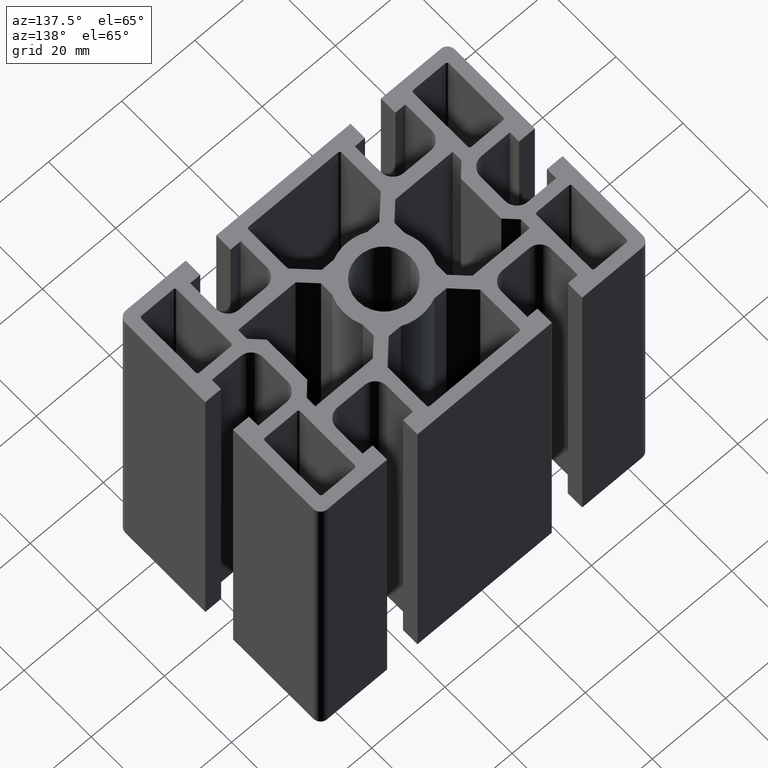
[diagram: clean part render]
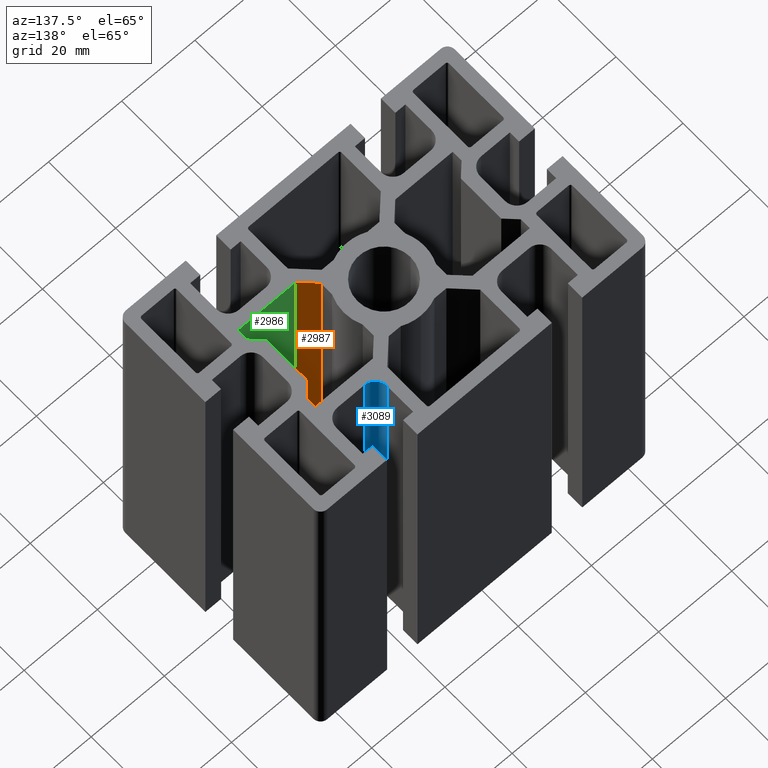
[diagram: same view with three faces highlighted in distinct colors, each labeled with its STEP entity id]
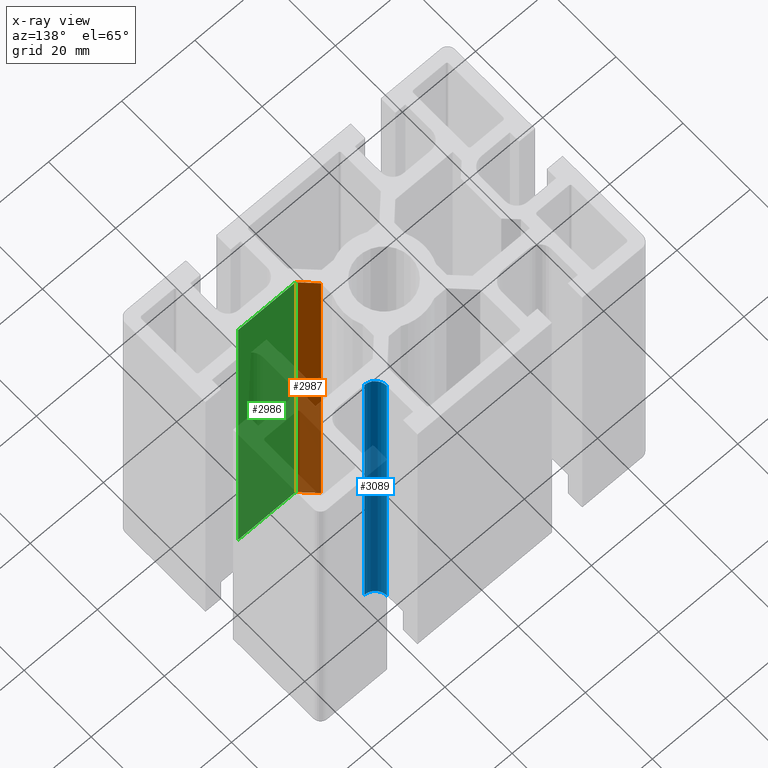
[diagram: x-ray of the same camera — body ghosted, the three highlighted faces saturated]
A machine part, auxiliary view with three faces highlighted in distinct colors.
The next image is the same camera in x-ray (body ghosted, the three faces saturated) — at least one of them is partly hidden behind the body in this view.
Their STEP definitions:

[orange] entity #2987 — the highlighted planar face has unit normal (-0.7071, -0.7071, 0).
#63=PLANE('',#3160);
#179=FACE_OUTER_BOUND('',#330,.T.);
#330=EDGE_LOOP('',(#2168,#2169,#2170,#2171));
#558=LINE('',#4424,#915);
#560=LINE('',#4428,#917);
#561=LINE('',#4430,#918);
#562=LINE('',#4431,#919);
#915=VECTOR('',#3562,100.);
#917=VECTOR('',#3566,5.12132034355713);
#918=VECTOR('',#3567,100.);
#919=VECTOR('',#3568,5.12132034355713);
#1343=VERTEX_POINT('',#4421);
#1344=VERTEX_POINT('',#4423);
#1345=VERTEX_POINT('',#4427);
#1346=VERTEX_POINT('',#4429);
#1680=EDGE_CURVE('',#1343,#1344,#558,.T.);
#1682=EDGE_CURVE('',#1345,#1343,#560,.T.);
#1683=EDGE_CURVE('',#1345,#1346,#561,.T.);
#1684=EDGE_CURVE('',#1344,#1346,#562,.T.);
#2168=ORIENTED_EDGE('',*,*,#1682,.F.);
#2169=ORIENTED_EDGE('',*,*,#1683,.T.);
#2170=ORIENTED_EDGE('',*,*,#1684,.F.);
#2171=ORIENTED_EDGE('',*,*,#1680,.F.);
#2987=ADVANCED_FACE('',(#179),#63,.F.);
#3160=AXIS2_PLACEMENT_3D('',#4426,#3564,#3565);
#3562=DIRECTION('',(0.,0.,1.));
#3564=DIRECTION('center_axis',(-0.707106781186613,-0.707106781186482,0.));
#3565=DIRECTION('ref_axis',(0.707106781186482,-0.707106781186614,0.));
#3566=DIRECTION('',(0.707106781186482,-0.707106781186613,0.));
#3567=DIRECTION('',(0.,0.,1.));
#3568=DIRECTION('',(-0.707106781186482,0.707106781186613,0.));
#4421=CARTESIAN_POINT('',(13.6213203435575,-11.5,0.));
#4423=CARTESIAN_POINT('',(13.6213203435575,-11.5,100.));
#4424=CARTESIAN_POINT('',(13.6213203435575,-11.5,0.));
#4426=CARTESIAN_POINT('Origin',(9.99999999999996,-7.87867965644176,0.));
#4427=CARTESIAN_POINT('',(9.99999999999996,-7.87867965644176,0.));
#4428=CARTESIAN_POINT('',(5.53033008909921,-3.40900974554018,0.));
#4429=CARTESIAN_POINT('',(9.99999999999996,-7.87867965644176,100.));
#4430=CARTESIAN_POINT('',(9.99999999999996,-7.87867965644176,0.));
#4431=CARTESIAN_POINT('',(5.53033008909921,-3.40900974554018,100.));

[blue] entity #3089 — the highlighted cylindrical surface (edge-blend (fillet) strip) has radius 3.2 mm, axis along (0, 0, 1).
#281=FACE_OUTER_BOUND('',#432,.T.);
#432=EDGE_LOOP('',(#2576,#2577,#2578,#2579));
#799=LINE('',#5037,#1156);
#800=LINE('',#5043,#1157);
#1156=VECTOR('',#4139,100.);
#1157=VECTOR('',#4146,100.);
#1259=CIRCLE('',#3329,3.19999999999993);
#1260=CIRCLE('',#3330,3.19999999999993);
#1547=VERTEX_POINT('',#5033);
#1548=VERTEX_POINT('',#5035);
#1549=VERTEX_POINT('',#5039);
#1550=VERTEX_POINT('',#5041);
#1987=EDGE_CURVE('',#1547,#1548,#799,.T.);
#1988=EDGE_CURVE('',#1549,#1547,#1259,.T.);
#1989=EDGE_CURVE('',#1550,#1548,#1260,.T.);
#1990=EDGE_CURVE('',#1549,#1550,#800,.T.);
#2576=ORIENTED_EDGE('',*,*,#1988,.T.);
#2577=ORIENTED_EDGE('',*,*,#1987,.T.);
#2578=ORIENTED_EDGE('',*,*,#1989,.F.);
#2579=ORIENTED_EDGE('',*,*,#1990,.F.);
#2945=CYLINDRICAL_SURFACE('',#3328,3.19999999999993);
#3089=ADVANCED_FACE('',(#281),#2945,.F.);
#3328=AXIS2_PLACEMENT_3D('',#5038,#4140,#4141);
#3329=AXIS2_PLACEMENT_3D('',#5040,#4142,#4143);
#3330=AXIS2_PLACEMENT_3D('',#5042,#4144,#4145);
#4139=DIRECTION('',(0.,0.,1.));
#4140=DIRECTION('center_axis',(0.,0.,1.));
#4141=DIRECTION('ref_axis',(1.,-8.44879721739767E-11,0.));
#4142=DIRECTION('center_axis',(0.,0.,-1.));
#4143=DIRECTION('ref_axis',(1.,-8.44879721739767E-11,0.));
#4144=DIRECTION('center_axis',(0.,0.,-1.));
#4145=DIRECTION('ref_axis',(1.,-8.44879721739767E-11,0.));
#4146=DIRECTION('',(0.,0.,1.));
#5033=CARTESIAN_POINT('',(15.6000000000006,17.9000000002663,0.));
#5035=CARTESIAN_POINT('',(15.6000000000006,17.9000000002663,100.));
#5037=CARTESIAN_POINT('',(15.6000000000006,17.9000000002663,0.));
#5038=CARTESIAN_POINT('Origin',(18.8000000000005,17.899999999996,0.));
#5039=CARTESIAN_POINT('',(18.8000000000011,14.6999999999994,0.));
#5040=CARTESIAN_POINT('Origin',(18.8000000000005,17.899999999996,0.));
#5041=CARTESIAN_POINT('',(18.8000000000011,14.6999999999994,100.));
#5042=CARTESIAN_POINT('Origin',(18.8000000000005,17.899999999996,100.));
#5043=CARTESIAN_POINT('',(18.8000000000011,14.6999999999994,0.));

[green] entity #2986 — the highlighted planar face has unit normal (-0, -1, 0).
#62=PLANE('',#3159);
#178=FACE_OUTER_BOUND('',#329,.T.);
#329=EDGE_LOOP('',(#2164,#2165,#2166,#2167));
#555=LINE('',#4418,#912);
#557=LINE('',#4422,#914);
#558=LINE('',#4424,#915);
#559=LINE('',#4425,#916);
#912=VECTOR('',#3557,100.);
#914=VECTOR('',#3561,15.6786796564423);
#915=VECTOR('',#3562,100.);
#916=VECTOR('',#3563,15.6786796564423);
#1341=VERTEX_POINT('',#4415);
#1342=VERTEX_POINT('',#4417);
#1343=VERTEX_POINT('',#4421);
#1344=VERTEX_POINT('',#4423);
#1677=EDGE_CURVE('',#1341,#1342,#555,.T.);
#1679=EDGE_CURVE('',#1343,#1341,#557,.T.);
#1680=EDGE_CURVE('',#1343,#1344,#558,.T.);
#1681=EDGE_CURVE('',#1342,#1344,#559,.T.);
#2164=ORIENTED_EDGE('',*,*,#1679,.F.);
#2165=ORIENTED_EDGE('',*,*,#1680,.T.);
#2166=ORIENTED_EDGE('',*,*,#1681,.F.);
#2167=ORIENTED_EDGE('',*,*,#1677,.F.);
#2986=ADVANCED_FACE('',(#178),#62,.F.);
#3159=AXIS2_PLACEMENT_3D('',#4420,#3559,#3560);
#3557=DIRECTION('',(0.,0.,1.));
#3559=DIRECTION('center_axis',(-9.06380832225423E-15,-1.,0.));
#3560=DIRECTION('ref_axis',(1.,-9.05941988094128E-15,0.));
#3561=DIRECTION('',(1.,-9.06380832225423E-15,0.));
#3562=DIRECTION('',(0.,0.,1.));
#3563=DIRECTION('',(-1.,9.06380832225423E-15,0.));
#4415=CARTESIAN_POINT('',(29.2999999999998,-11.5000000000001,0.));
#4417=CARTESIAN_POINT('',(29.2999999999998,-11.5000000000001,100.));
#4418=CARTESIAN_POINT('',(29.2999999999998,-11.5000000000001,0.));
#4420=CARTESIAN_POINT('Origin',(13.6213203435575,-11.5,0.));
#4421=CARTESIAN_POINT('',(13.6213203435575,-11.5,0.));
#4422=CARTESIAN_POINT('',(6.81066022713514,-11.4999999999999,0.));
#4423=CARTESIAN_POINT('',(13.6213203435575,-11.5,100.));
#4424=CARTESIAN_POINT('',(13.6213203435575,-11.5,0.));
#4425=CARTESIAN_POINT('',(6.81066022713514,-11.4999999999999,100.));